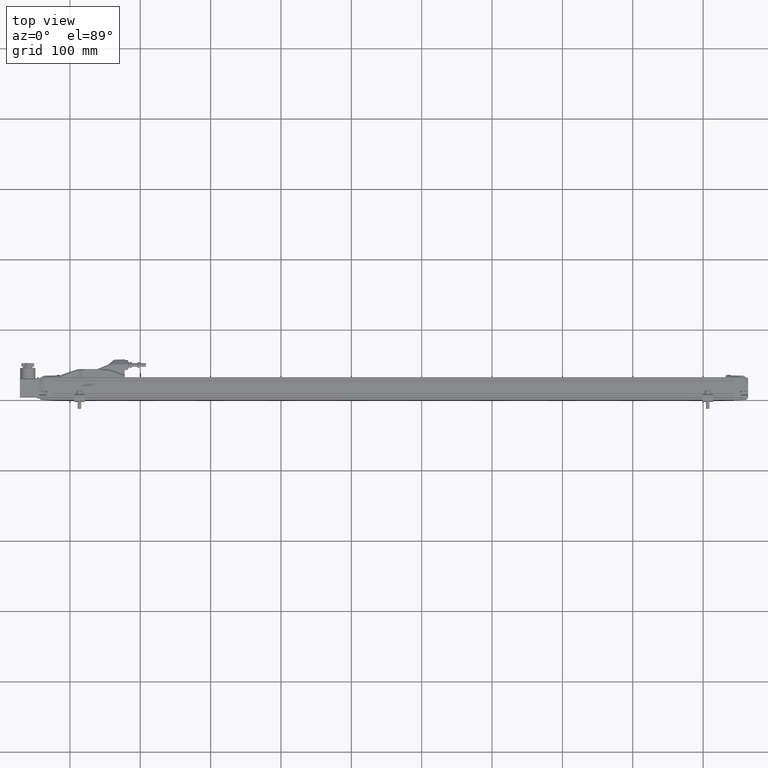
[diagram: clean part render]
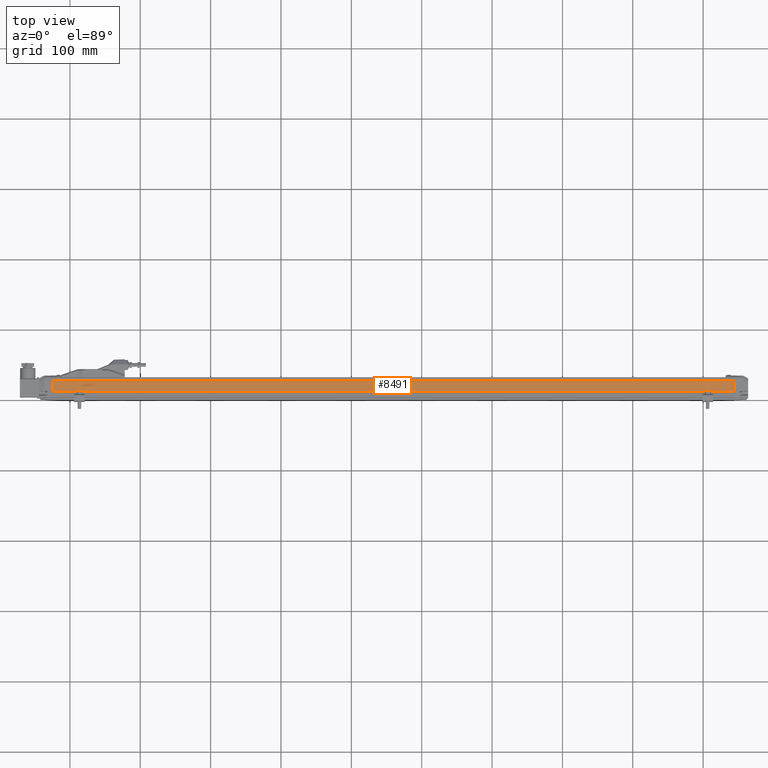
[diagram: same view with one face highlighted and labeled with its STEP entity id]
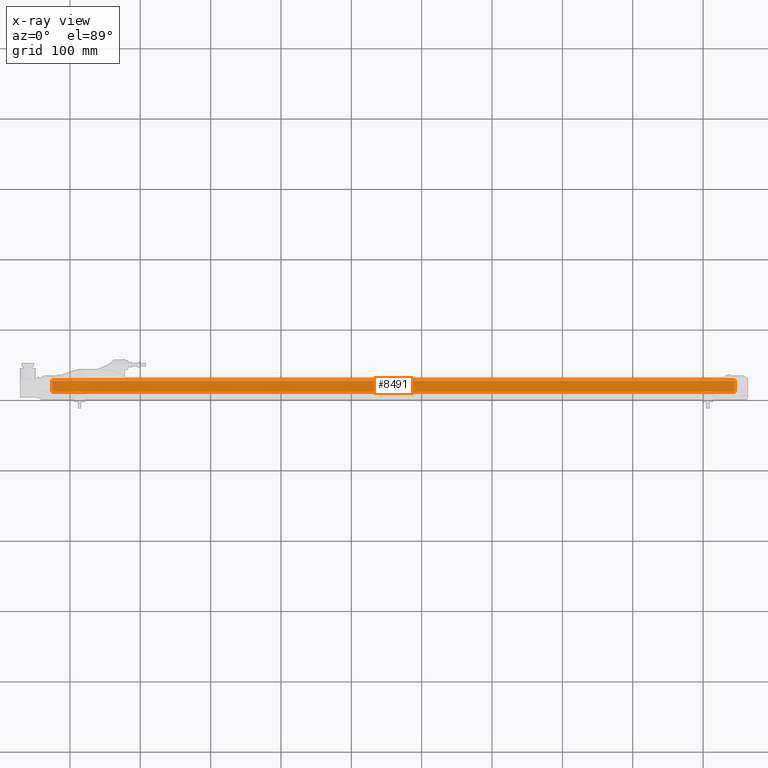
[diagram: x-ray of the same camera — body ghosted, the highlighted face saturated]
A machine part, top view. The second image highlights one B-rep face of the part: STEP entity #8491.
The next image is the same camera in x-ray: the body ghosted, the highlighted face saturated — about 0% of this face is hidden behind the body in this view.
In plain terms, the highlighted planar face has unit normal (-0, -0, -1).
Its self-contained STEP definition (entity closure, byte-faithful):
#576 = AXIS2_PLACEMENT_3D ( 'NONE', #37486, #42566, #6699 ) ;
#1282 = VERTEX_POINT ( 'NONE', #20659 ) ;
#1972 = VECTOR ( 'NONE', #42842, 39.37007874015748143 ) ;
#2172 = EDGE_CURVE ( 'NONE', #1282, #6567, #19614, .T. ) ;
#2188 = CARTESIAN_POINT ( 'NONE',  ( -8.858267716535433323, 1.061023630314960720, 0.000000000000000000 ) ) ;
#2476 = VERTEX_POINT ( 'NONE', #39393 ) ;
#3799 = DIRECTION ( 'NONE',  ( 1.000000000000000000, -6.829894528618840264E-25, -1.341063538875720069E-28 ) ) ;
#5344 = VECTOR ( 'NONE', #15531, 39.37007874015748143 ) ;
#5855 = EDGE_CURVE ( 'NONE', #2476, #1282, #12728, .T. ) ;
#5933 = VERTEX_POINT ( 'NONE', #33451 ) ;
#6567 = VERTEX_POINT ( 'NONE', #40054 ) ;
#6699 = DIRECTION ( 'NONE',  ( -1.000000000000000000, 6.829894528618840264E-25, 1.341063538875720069E-28 ) ) ;
#8491 = ADVANCED_FACE ( 'NONE', ( #14131 ), #28337, .F. ) ;
#8679 = DIRECTION ( 'NONE',  ( 1.000000000000000000, -6.829894528618840264E-25, -1.341063538875720069E-28 ) ) ;
#12069 = ORIENTED_EDGE ( 'NONE', *, *, #41227, .T. ) ;
#12728 = LINE ( 'NONE', #26247, #5344 ) ;
#14131 = FACE_OUTER_BOUND ( 'NONE', #42226, .T. ) ;
#15531 = DIRECTION ( 'NONE',  ( 6.829894528618840264E-25, 1.000000000000000000, -1.936991253392630006E-26 ) ) ;
#19614 = LINE ( 'NONE', #2188, #42355 ) ;
#20659 = CARTESIAN_POINT ( 'NONE',  ( -8.858267716535433323, 1.061023630314960720, 0.000000000000000000 ) ) ;
#24721 = CARTESIAN_POINT ( 'NONE',  ( -8.858267716535433323, 0.4468503849212598911, 0.000000000000000000 ) ) ;
#26247 = CARTESIAN_POINT ( 'NONE',  ( -8.858267716535433323, 0.4468503849212598911, 0.000000000000000000 ) ) ;
#28337 = PLANE ( 'NONE',  #576 ) ;
#28644 = ORIENTED_EDGE ( 'NONE', *, *, #2172, .F. ) ;
#28740 = ORIENTED_EDGE ( 'NONE', *, *, #5855, .F. ) ;
#28837 = CARTESIAN_POINT ( 'NONE',  ( 29.33070866141732225, 0.4468503849212598911, 0.000000000000000000 ) ) ;
#33304 = ORIENTED_EDGE ( 'NONE', *, *, #34190, .T. ) ;
#33451 = CARTESIAN_POINT ( 'NONE',  ( 29.33070866141732225, 0.4468503849212598911, 0.000000000000000000 ) ) ;
#34190 = EDGE_CURVE ( 'NONE', #2476, #5933, #42445, .T. ) ;
#36729 = LINE ( 'NONE', #28837, #1972 ) ;
#37486 = CARTESIAN_POINT ( 'NONE',  ( -8.858267716535433323, 0.4468503849212598911, 0.000000000000000000 ) ) ;
#39034 = VECTOR ( 'NONE', #3799, 39.37007874015748143 ) ;
#39393 = CARTESIAN_POINT ( 'NONE',  ( -8.858267716535433323, 0.4468503849212598911, 0.000000000000000000 ) ) ;
#40054 = CARTESIAN_POINT ( 'NONE',  ( 29.33070866141732225, 1.061023630314960720, 0.000000000000000000 ) ) ;
#41227 = EDGE_CURVE ( 'NONE', #5933, #6567, #36729, .T. ) ;
#42226 = EDGE_LOOP ( 'NONE', ( #12069, #28644, #28740, #33304 ) ) ;
#42355 = VECTOR ( 'NONE', #8679, 39.37007874015748143 ) ;
#42445 = LINE ( 'NONE', #24721, #39034 ) ;
#42566 = DIRECTION ( 'NONE',  ( -1.341063538875720069E-28, -1.936991253392630006E-26, -1.000000000000000000 ) ) ;
#42842 = DIRECTION ( 'NONE',  ( 6.829894528618840264E-25, 1.000000000000000000, -1.936991253392630006E-26 ) ) ;